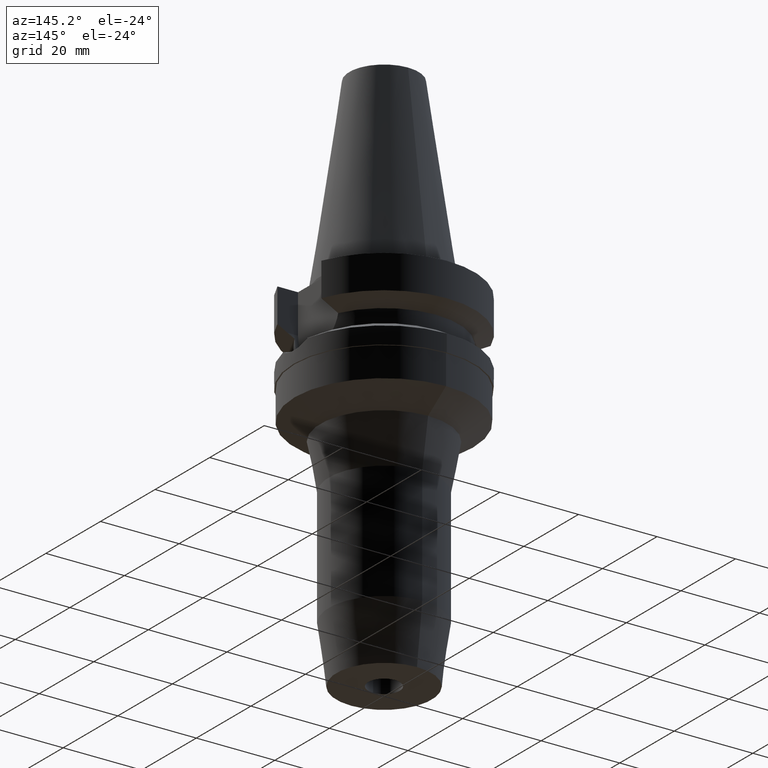
[diagram: clean part render]
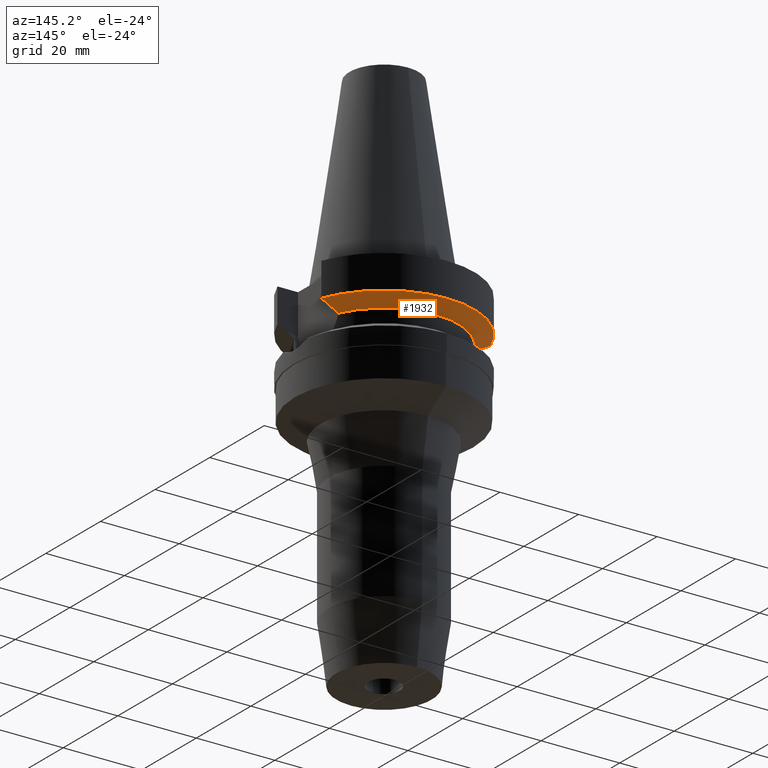
[diagram: same view with one face highlighted and labeled with its STEP entity id]
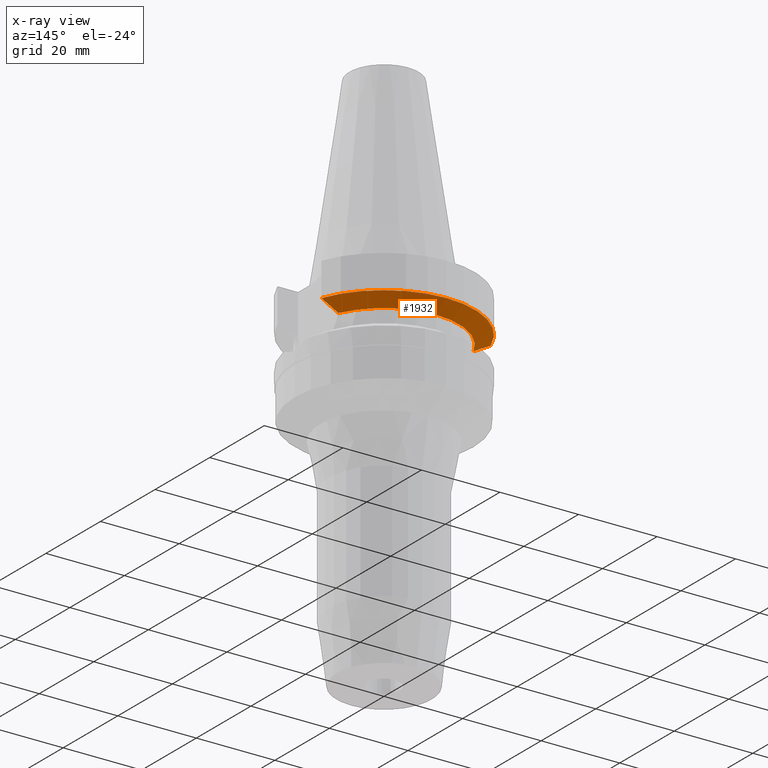
[diagram: x-ray of the same camera — body ghosted, the highlighted face saturated]
A machine part, auxiliary view. The second image highlights one B-rep face of the part: STEP entity #1932.
The next image is the same camera in x-ray: the body ghosted, the highlighted face saturated — about 0% of this face is hidden behind the body in this view.
In plain terms, the highlighted conical surface has half-angle 60 deg.
Its self-contained STEP definition (entity closure, byte-faithful):
#734=CARTESIAN_POINT('',(-1.723531135311E1,7.996501749182E0,-1.187660739352E1));
#754=CARTESIAN_POINT('',(-1.896736186674E1,8.050001277723E0,-1.094999977543E1));
#755=CARTESIAN_POINT('',(-1.877435788378E1,8.050001277723E0,-1.105257472431E1));
#756=CARTESIAN_POINT('',(-1.838865476390E1,8.046082019873E0,-1.125795281937E1));
#757=CARTESIAN_POINT('',(-1.781119204542E1,8.028323726355E0,-1.156685916143E1));
#758=CARTESIAN_POINT('',(-1.742708427626E1,8.008477147819E0,-1.177326090513E1));
#759=CARTESIAN_POINT('',(-1.723531135311E1,7.996501749182E0,-1.187660739352E1));
#764=CARTESIAN_POINT('',(0.E0,1.093341284897E-14,-1.187660944647E1));
#765=DIRECTION('',(0.E0,0.E0,-1.E0));
#766=DIRECTION('',(-9.071218755694E-1,4.208680349747E-1,0.E0));
#767=AXIS2_PLACEMENT_3D('',#764,#765,#766);
#772=CARTESIAN_POINT('',(0.E0,1.093341284897E-14,-1.187660944647E1));
#773=DIRECTION('',(0.E0,0.E0,-1.E0));
#774=DIRECTION('',(0.E0,1.E0,0.E0));
#775=AXIS2_PLACEMENT_3D('',#772,#773,#774);
#780=CARTESIAN_POINT('',(1.723531622902E1,7.996491146276E0,-1.187660607782E1));
#781=CARTESIAN_POINT('',(1.742711751403E1,8.008468271790E0,-1.177324424046E1));
#782=CARTESIAN_POINT('',(1.781125610070E1,8.028331856440E0,-1.156681091111E1));
#783=CARTESIAN_POINT('',(1.838870194717E1,8.046085191966E0,-1.125790844374E1));
#784=CARTESIAN_POINT('',(1.877442071819E1,8.049994318183E0,-1.105255736998E1));
#785=CARTESIAN_POINT('',(1.896738966530E1,8.049994318183E0,-1.095000099923E1));
#790=CARTESIAN_POINT('',(0.E0,1.093341284897E-14,-9.567208369711E0));
#791=DIRECTION('',(0.E0,0.E0,1.E0));
#792=DIRECTION('',(9.367496997597E-1,3.500000000001E-1,0.E0));
#793=AXIS2_PLACEMENT_3D('',#790,#791,#792);
#798=CARTESIAN_POINT('',(0.E0,1.093341284897E-14,-9.567208369711E0));
#799=DIRECTION('',(0.E0,0.E0,1.E0));
#800=DIRECTION('',(0.E0,1.E0,0.E0));
#801=AXIS2_PLACEMENT_3D('',#798,#799,#800);
#806=CARTESIAN_POINT('',(-1.896736186674E1,8.050001277723E0,-1.094999977543E1));
#807=CARTESIAN_POINT('',(-1.925439178295E1,8.050001277723E0,-1.079745329150E1));
#808=CARTESIAN_POINT('',(-1.982795252640E1,8.049999683001E0,-1.049150139874E1));
#809=CARTESIAN_POINT('',(-2.068728862326E1,8.049999192912E0,-1.003062464925E1));
#810=CARTESIAN_POINT('',(-2.125933007641E1,8.050002094538E0,-9.721825273656E0));
#811=CARTESIAN_POINT('',(-2.154524231189E1,8.050002094538E0,-9.567194606710E0));
#830=CARTESIAN_POINT('',(2.154524325238E1,8.049999577379E0,-9.567211146543E0));
#831=CARTESIAN_POINT('',(2.125934146994E1,8.049999577379E0,-9.721836180394E0));
#832=CARTESIAN_POINT('',(2.068725319578E1,8.049999439648E0,-1.003056889150E1));
#833=CARTESIAN_POINT('',(1.982793088328E1,8.050002595165E0,-1.049144078753E1));
#834=CARTESIAN_POINT('',(1.925438162563E1,8.049994318183E0,-1.079747462476E1));
#835=CARTESIAN_POINT('',(1.896738966530E1,8.049994318183E0,-1.095000099923E1));
#1214=CARTESIAN_POINT('',(1.896738966530E1,8.049994318183E0,-1.095000099923E1));
#1215=VERTEX_POINT('',#1214);
#1216=VERTEX_POINT('',#780);
#1226=VERTEX_POINT('',#734);
#1227=VERTEX_POINT('',#754);
#1239=CARTESIAN_POINT('',(0.E0,1.9E1,-1.187660944647E1));
#1240=VERTEX_POINT('',#1239);
#1246=VERTEX_POINT('',#811);
#1247=VERTEX_POINT('',#830);
#1248=CARTESIAN_POINT('',(-1.303073946459E-14,2.3E1,-9.567208369711E0));
#1249=VERTEX_POINT('',#1248);
#1913=CARTESIAN_POINT('',(0.E0,1.093341284897E-14,-1.072190890809E1));
#1914=DIRECTION('',(0.E0,0.E0,1.E0));
#1915=DIRECTION('',(0.E0,1.E0,0.E0));
#1916=AXIS2_PLACEMENT_3D('',#1913,#1914,#1915);
#1917=CONICAL_SURFACE('',#1916,2.1E1,6.E1);
#1919=ORIENTED_EDGE('',*,*,#1918,.F.);
#1920=ORIENTED_EDGE('',*,*,#1849,.T.);
#1921=ORIENTED_EDGE('',*,*,#1908,.T.);
#1922=ORIENTED_EDGE('',*,*,#1906,.T.);
#1923=ORIENTED_EDGE('',*,*,#1810,.T.);
#1925=ORIENTED_EDGE('',*,*,#1924,.F.);
#1927=ORIENTED_EDGE('',*,*,#1926,.T.);
#1929=ORIENTED_EDGE('',*,*,#1928,.T.);
#1930=EDGE_LOOP('',(#1919,#1920,#1921,#1922,#1923,#1925,#1927,#1929));
#1931=FACE_OUTER_BOUND('',#1930,.F.);
#760=B_SPLINE_CURVE_WITH_KNOTS('',3,(#754,#755,#756,#757,#758,#759),
.UNSPECIFIED.,.F.,.F.,(4,1,1,4),(0.E0,3.333333333333E-1,6.666666666667E-1,1.E0),
.UNSPECIFIED.);
#768=CIRCLE('',#767,1.9E1);
#776=CIRCLE('',#775,1.9E1);
#786=B_SPLINE_CURVE_WITH_KNOTS('',3,(#780,#781,#782,#783,#784,#785),
.UNSPECIFIED.,.F.,.F.,(4,1,1,4),(0.E0,3.333333333333E-1,6.666666666667E-1,1.E0),
.UNSPECIFIED.);
#794=CIRCLE('',#793,2.3E1);
#802=CIRCLE('',#801,2.3E1);
#812=B_SPLINE_CURVE_WITH_KNOTS('',3,(#806,#807,#808,#809,#810,#811),
.UNSPECIFIED.,.F.,.F.,(4,1,1,4),(0.E0,3.333333333333E-1,6.666666666667E-1,1.E0),
.UNSPECIFIED.);
#836=B_SPLINE_CURVE_WITH_KNOTS('',3,(#830,#831,#832,#833,#834,#835),
.UNSPECIFIED.,.F.,.F.,(4,1,1,4),(0.E0,3.333333333333E-1,6.666666666667E-1,1.E0),
.UNSPECIFIED.);
#1810=EDGE_CURVE('',#1216,#1215,#786,.T.);
#1849=EDGE_CURVE('',#1227,#1226,#760,.T.);
#1906=EDGE_CURVE('',#1240,#1216,#776,.T.);
#1908=EDGE_CURVE('',#1226,#1240,#768,.T.);
#1918=EDGE_CURVE('',#1227,#1246,#812,.T.);
#1924=EDGE_CURVE('',#1247,#1215,#836,.T.);
#1926=EDGE_CURVE('',#1247,#1249,#794,.T.);
#1928=EDGE_CURVE('',#1249,#1246,#802,.T.);
#1932=ADVANCED_FACE('',(#1931),#1917,.T.);